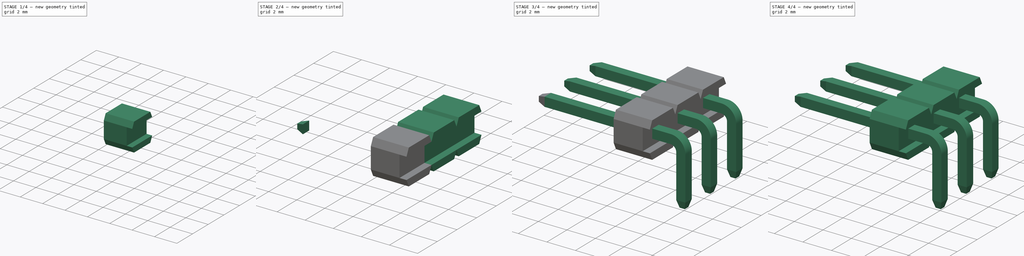
[diagram: build sequence overview — one tinted view per stage of 4, left to right]
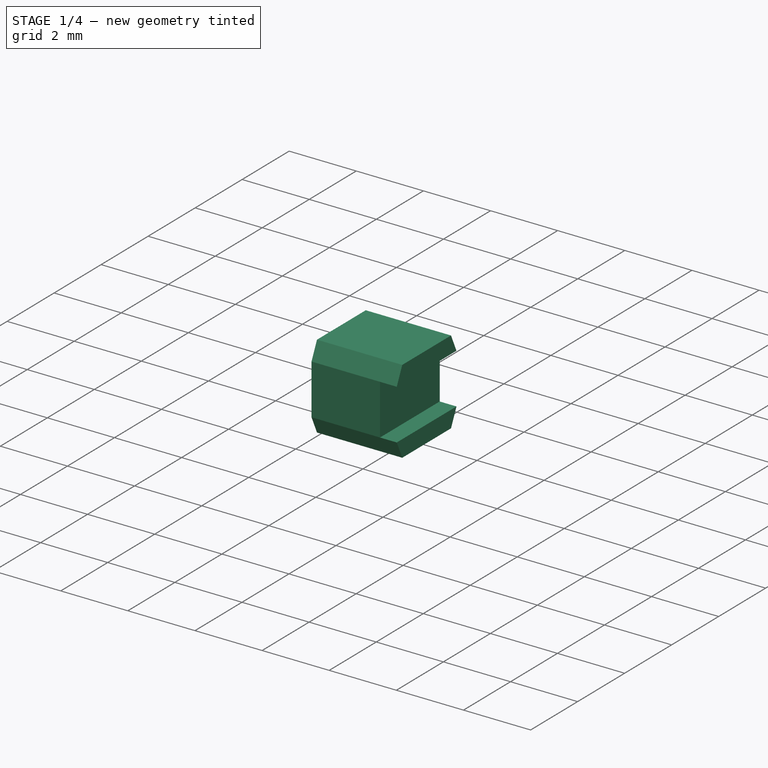
[diagram: stage 1 of 4 — iso view after this stage's code; geometry added in this stage tinted green]
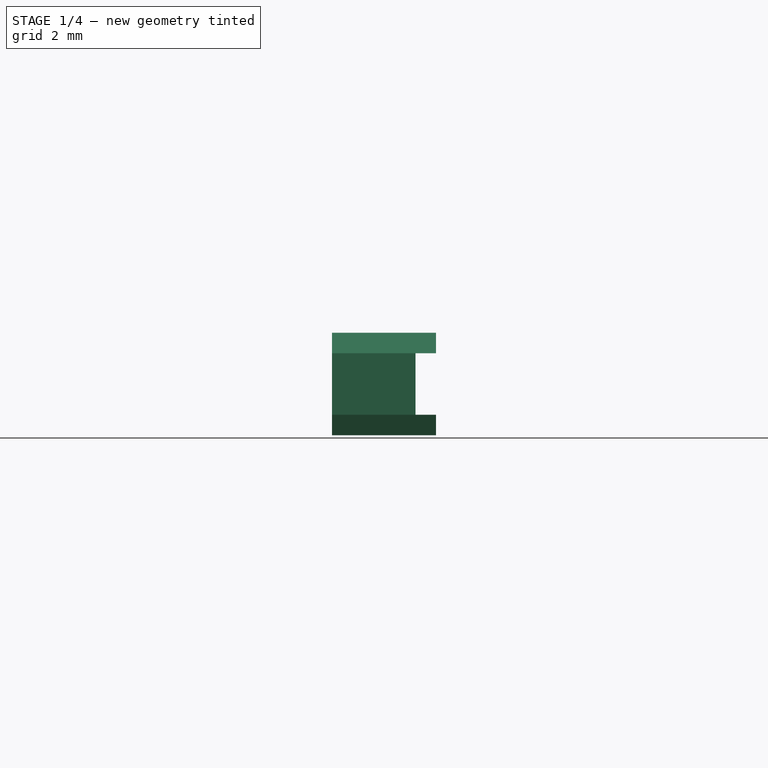
[diagram: stage 1 of 4 — front view after this stage's code; geometry added in this stage tinted green]
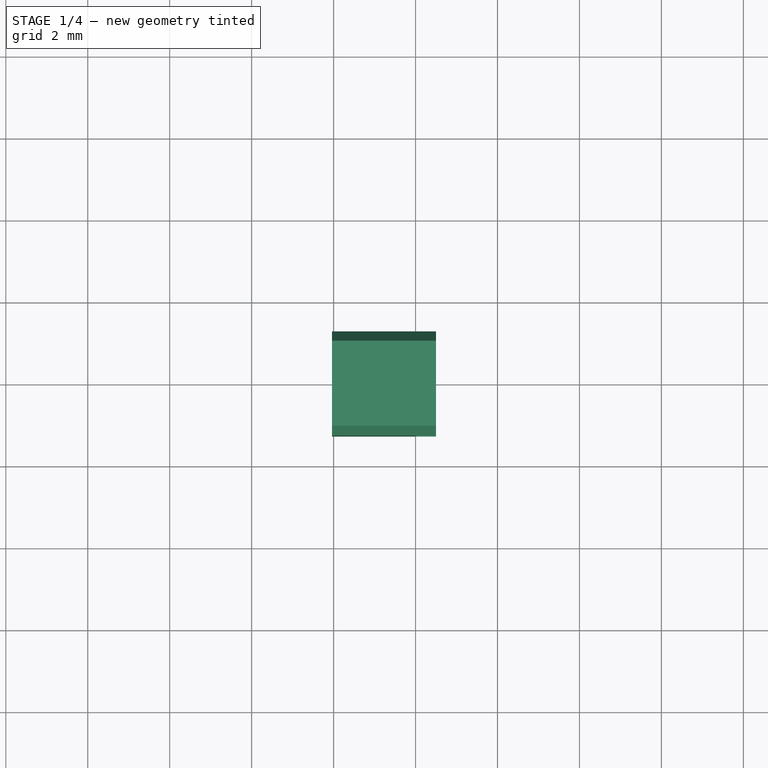
[diagram: stage 1 of 4 — top view after this stage's code; geometry added in this stage tinted green]
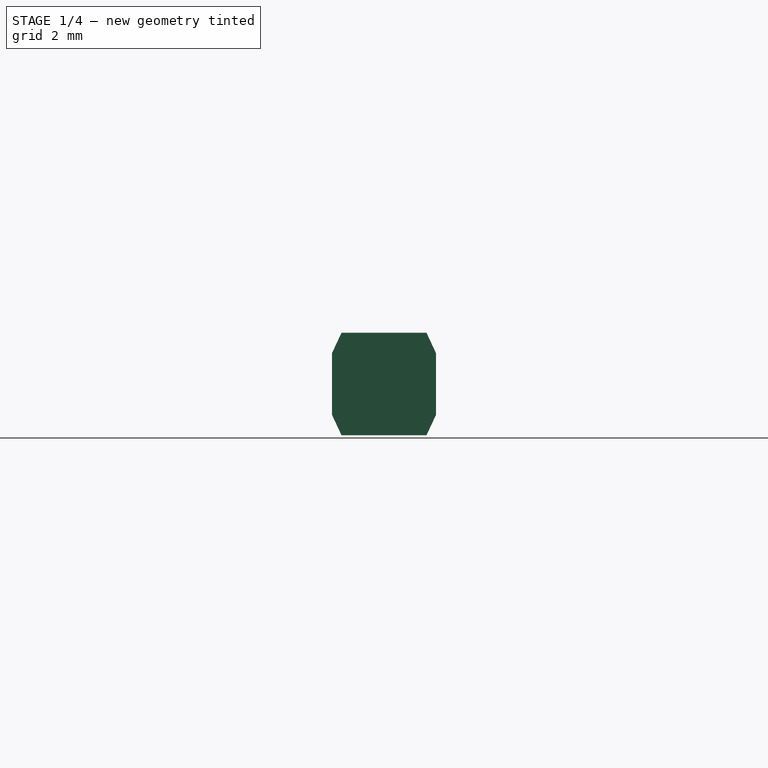
[diagram: stage 1 of 4 — right view after this stage's code; geometry added in this stage tinted green]
FCSTD DOCUMENT  (FreeCAD 0.16R6707 (Git))
Label: 1x3-male-pin-header-right-angle-type-II
License: All rights reserved
LicenseURL: http://en.wikipedia.org/wiki/All_rights_reserved
objects: Sketcher::SketchObject×5, Part::FeaturePython×5, PartDesign::Pad×2, Part::Loft×1, Part::MultiFuse×1, PartDesign::Pocket×1, App::DocumentObjectGroup×1
note: 18 computed .brp shape members not serialized (recipe doc carries the construction recipe); baked Part::Feature solids carry a one-line shape summary decoded from their .brp

FEATURE [Sketcher::SketchObject] Sketch003  label="Insulator-sketch-1"
  Placement = pos=(-4.04,-1e-12,-0.000281898) rot=(0.57735,0.57735,0.57735;2.0944rad)
  sketch-geometry (11):
    g0: LineSegment StartX=-1.0375 StartY=0 StartZ=0 EndX=1.0375 EndY=0 EndZ=0
    g1: LineSegment [constr] StartX=-1.0375 StartY=0 StartZ=0 EndX=-1.0375 EndY=2.5 EndZ=0
    g2: LineSegment [constr] StartX=-1.0375 StartY=1.25 StartZ=0 EndX=0 EndY=1.25 EndZ=0
    g3: LineSegment [constr] StartX=-1.27 StartY=0.5 StartZ=0 EndX=1.27 EndY=0.5 EndZ=0
    g4: LineSegment StartX=-1.0375 StartY=0 StartZ=0 EndX=-1.27 EndY=0.5 EndZ=0
    g5: LineSegment StartX=-1.27 StartY=0.5 StartZ=0 EndX=-1.27 EndY=2 EndZ=0
    g6: LineSegment StartX=-1.27 StartY=2 StartZ=0 EndX=-1.0375 EndY=2.5 EndZ=0
    g7: LineSegment StartX=-1.0375 StartY=2.5 StartZ=0 EndX=1.0375 EndY=2.5 EndZ=0
    g8: LineSegment StartX=1.0375 StartY=2.5 StartZ=0 EndX=1.27 EndY=2 EndZ=0
    g9: LineSegment StartX=1.27 StartY=2 StartZ=0 EndX=1.27 EndY=0.5 EndZ=0
    g10: LineSegment StartX=1.27 StartY=0.5 StartZ=0 EndX=1.0375 EndY=0 EndZ=0
  constraints (28):
    c: PointOnObject(g0,g-1)
    c: Symmetric(g0,g0,g-2)
    c: DistanceX(g0,g0) = 2.075
    c: Coincident(g1,g0)
    c: Vertical(g1)
    c: DistanceY(g1,g1) = 2.5
    c: PointOnObject(g2,g1)
    c: PointOnObject(g2,g-2)
    c: Symmetric(g1,g0,g2)
    c: Horizontal(g3)
    c: Symmetric(g3,g3,g-2)
    c: DistanceX(g3,g3) = 2.54
    c: Coincident(g0,g4)
    c: Coincident(g4,g3)
    c: Coincident(g4,g5)
    c: Coincident(g5,g6)
    c: Coincident(g6,g1)
    c: Symmetric(g3,g5,g2)
    c: DistanceY(g0,g3) = 0.5
    c: Coincident(g7,g1)
    c: Horizontal(g7)
    c: Coincident(g7,g8)
    c: Coincident(g8,g9)
    c: Coincident(g9,g3)
    c: Coincident(g9,g10)
    c: Coincident(g10,g0)
    c: Symmetric(g1,g7,g-2)
    c: Symmetric(g8,g5,g-2)
FEATURE [PartDesign::Pad] Pad001  label="Insulator-1"
  Length = 2.54
  Length2 = 100
  Placement = pos=(-4.04,-1e-12,-0.000281898) rot=(0.57735,0.57735,0.57735;2.0944rad)
  Sketch = -> Sketch003
  Type = 0
FEATURE [Sketcher::SketchObject] Sketch004  label="Insulator-2-sketch"
  ExternalGeometry = -> [Pad001]
  Placement = pos=(-4.04,-1.27,-0.000281898) rot=(0.57735,0.57735,-0.57735;2.0944rad)
  Support = -> Pad001 [Face7]
  sketch-geometry (4):
    g0: LineSegment StartX=-2 StartY=2.54 StartZ=0 EndX=-0.5 EndY=2.54 EndZ=0
    g1: LineSegment StartX=-0.5 StartY=2.54 StartZ=0 EndX=-0.5 EndY=2.04 EndZ=0
    g2: LineSegment StartX=-0.5 StartY=2.04 StartZ=0 EndX=-2 EndY=2.04 EndZ=0
    g3: LineSegment StartX=-2 StartY=2.04 StartZ=0 EndX=-2 EndY=2.54 EndZ=0
  constraints (11):
    c: Coincident(g0,g1)
    c: Coincident(g1,g2)
    c: Coincident(g2,g3)
    c: Coincident(g3,g0)
    c: Horizontal(g0)
    c: Horizontal(g2)
    c: Vertical(g1)
    c: Vertical(g3)
    c: Coincident(g0,g-3)
    c: Coincident(g0,g-3)
    c: DistanceY(g1,g1) = 0.5
FEATURE [PartDesign::Pocket] Pocket  label="Insulator-2"
  Length = 5
  Placement = pos=(-4.04,-1e-12,-0.000281898) rot=(0.57735,0.57735,0.57735;2.0944rad)
  Sketch = -> Sketch004
  Type = 1
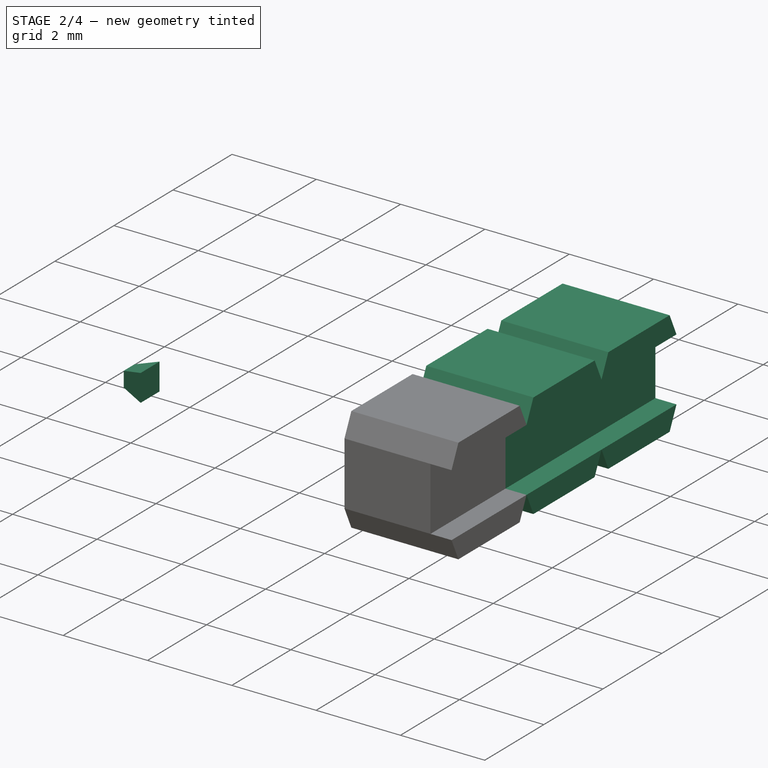
[diagram: stage 2 of 4 — iso view after this stage's code; geometry added in this stage tinted green]
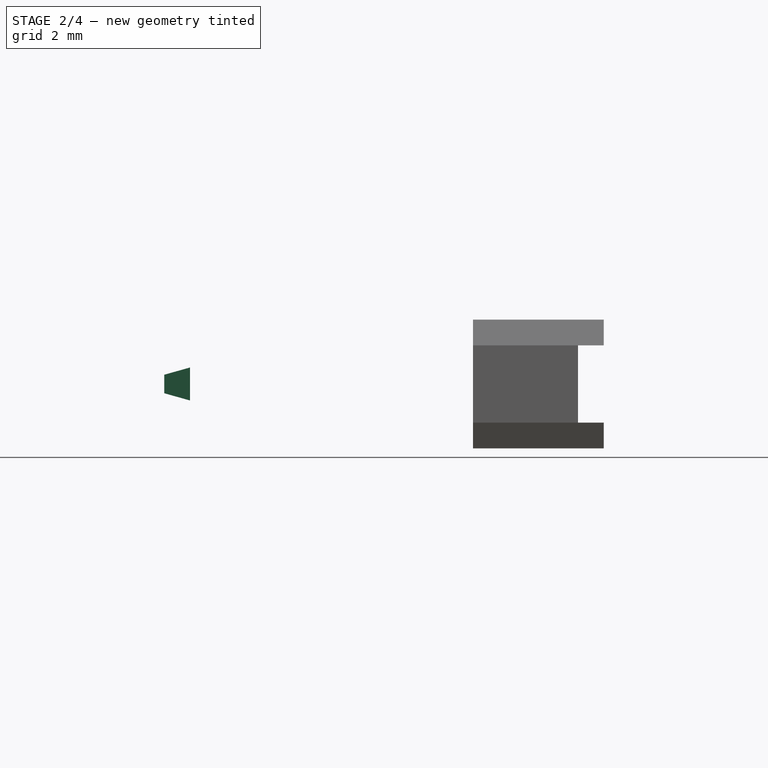
[diagram: stage 2 of 4 — front view after this stage's code; geometry added in this stage tinted green]
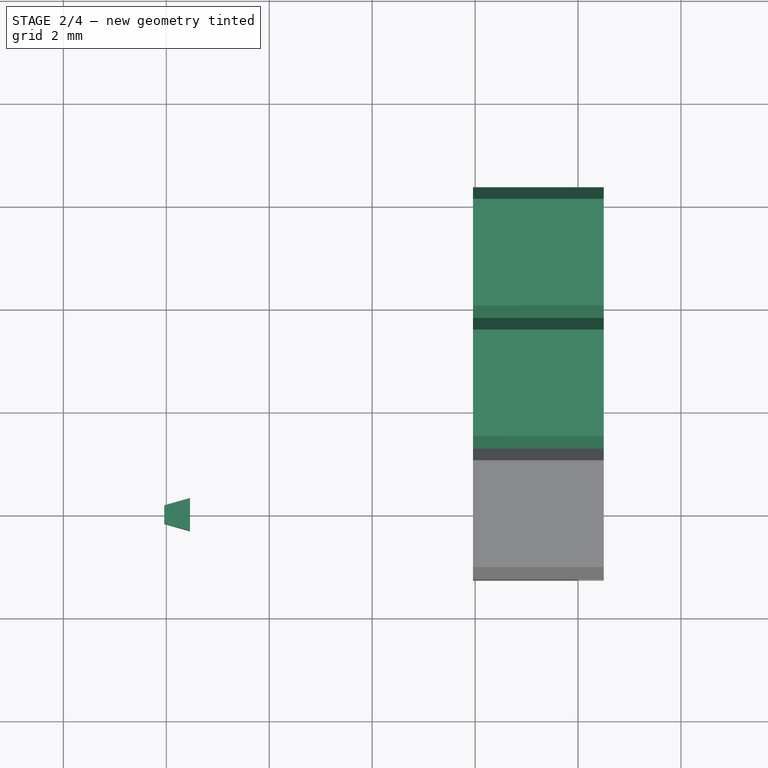
[diagram: stage 2 of 4 — top view after this stage's code; geometry added in this stage tinted green]
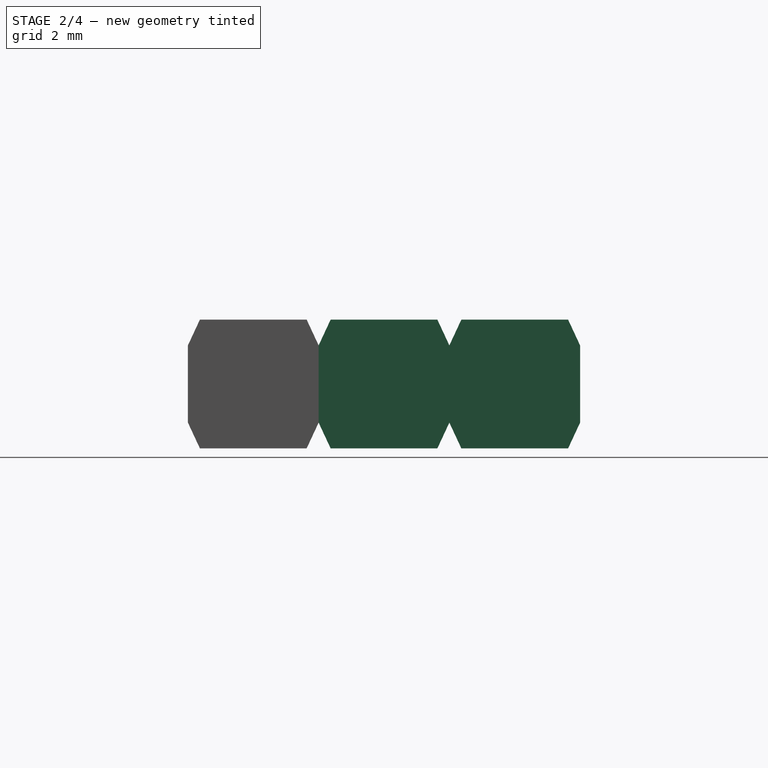
[diagram: stage 2 of 4 — right view after this stage's code; geometry added in this stage tinted green]
FEATURE [Sketcher::SketchObject] Sketch001  label="pin-end-base1-sketch"
  Placement = pos=(-9.54,0,0) rot=(0.707107,0,-0.707107;3.14159rad)
  sketch-geometry (4):
    g0: LineSegment StartX=-1.57 StartY=-0.32 StartZ=0 EndX=-0.93 EndY=-0.32 EndZ=0
    g1: LineSegment StartX=-0.93 StartY=-0.32 StartZ=0 EndX=-0.93 EndY=0.32 EndZ=0
    g2: LineSegment StartX=-0.93 StartY=0.32 StartZ=0 EndX=-1.57 EndY=0.32 EndZ=0
    g3: LineSegment StartX=-1.57 StartY=0.32 StartZ=0 EndX=-1.57 EndY=-0.32 EndZ=0
  constraints (8):
    c: Coincident(g0,g1)
    c: Coincident(g1,g2)
    c: Coincident(g2,g3)
    c: Coincident(g3,g0)
    c: Horizontal(g0)
    c: Horizontal(g2)
    c: Vertical(g1)
    c: Vertical(g3)
FEATURE [Sketcher::SketchObject] Sketch002  label="pin-end-base2-sketch"
  Placement = pos=(-10.04,0,0) rot=(0.707107,0,-0.707107;3.14159rad)
  sketch-geometry (6):
    g0: LineSegment StartX=-1.43 StartY=0.18 StartZ=0 EndX=-1.07 EndY=0.18 EndZ=0
    g1: LineSegment StartX=-1.07 StartY=0.18 StartZ=0 EndX=-1.07 EndY=-0.18 EndZ=0
    g2: LineSegment StartX=-1.07 StartY=-0.18 StartZ=0 EndX=-1.43 EndY=-0.18 EndZ=0
    g3: LineSegment StartX=-1.43 StartY=-0.18 StartZ=0 EndX=-1.43 EndY=0.18 EndZ=0
    g4: LineSegment [constr] StartX=-1.25 StartY=0.32 StartZ=0 EndX=-1.25 EndY=0.18 EndZ=0
    g5: LineSegment [constr] StartX=-1.57 StartY=0 StartZ=0 EndX=-1.43 EndY=0 EndZ=0
  constraints (15):
    c: Coincident(g0,g1)
    c: Coincident(g1,g2)
    c: Coincident(g2,g3)
    c: Coincident(g3,g0)
    c: Horizontal(g0)
    c: Horizontal(g2)
    c: Vertical(g1)
    c: Vertical(g3)
    c: PointOnObject(g4,g0)
    c: Symmetric(g0,g0,g4)
    c: Equal(g0,g3)
    c: PointOnObject(g5,g3)
    c: Horizontal(g5)
    c: Symmetric(g0,g2,g5)
    c: DistanceY(g1,g1) = 0.36
FEATURE [Part::Loft] Loft  label="Pin-end"
  Closed = false
  Placement = pos=(1.25,0,7.04) rot=(0,-1,0;1.5708rad)
  Ruled = false
  Sections = -> [Sketch001,Sketch002]
  Solid = true
FEATURE [Part::FeaturePython] Clone  label="Pin-end2"  # Draft clone (typed FeaturePython)
  Objects = -> [Loft]
  Scale = (1,1,1)
FEATURE [Part::FeaturePython] Array001  label="Insulator-array-3-src"  # Draft array (typed FeaturePython)
  Angle = 360
  ArrayType = 0
  Axis = (0,0,1)
  Base = -> Pocket
  Center = (0,0,0)
  Fuse = false
  IntervalAxis = (0,0,0)
  IntervalX = (1,0,0)
  IntervalY = (0,2.54,0)
  IntervalZ = (0,0,0)
  NumberPolar = 1
  NumberX = 1
  NumberY = 3
  NumberZ = 1
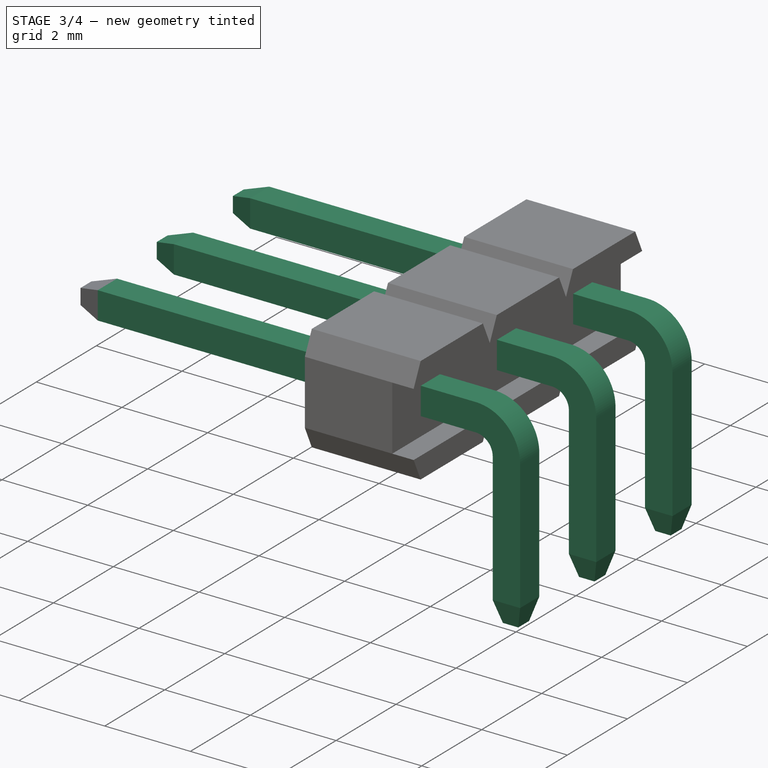
[diagram: stage 3 of 4 — iso view after this stage's code; geometry added in this stage tinted green]
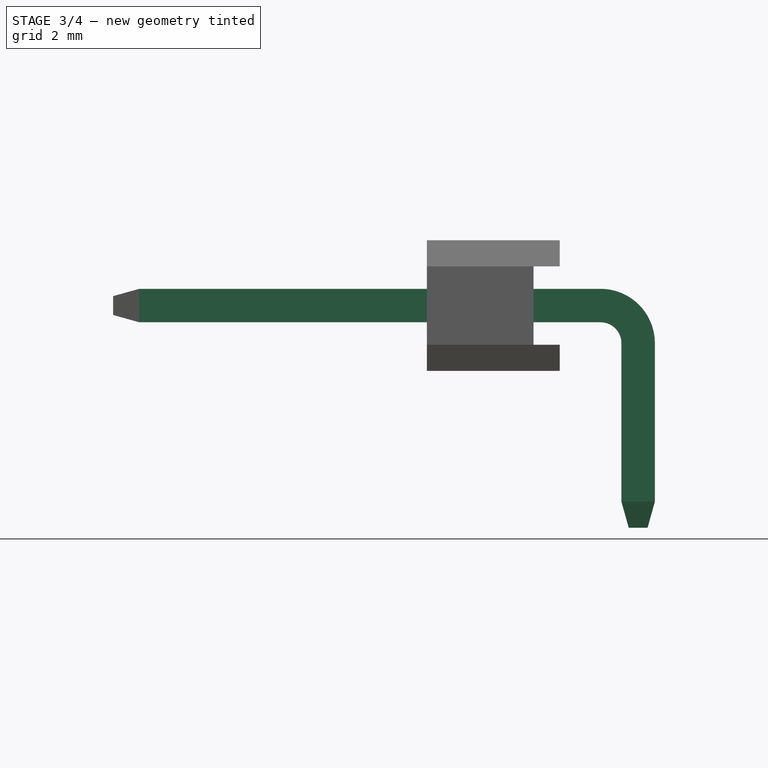
[diagram: stage 3 of 4 — front view after this stage's code; geometry added in this stage tinted green]
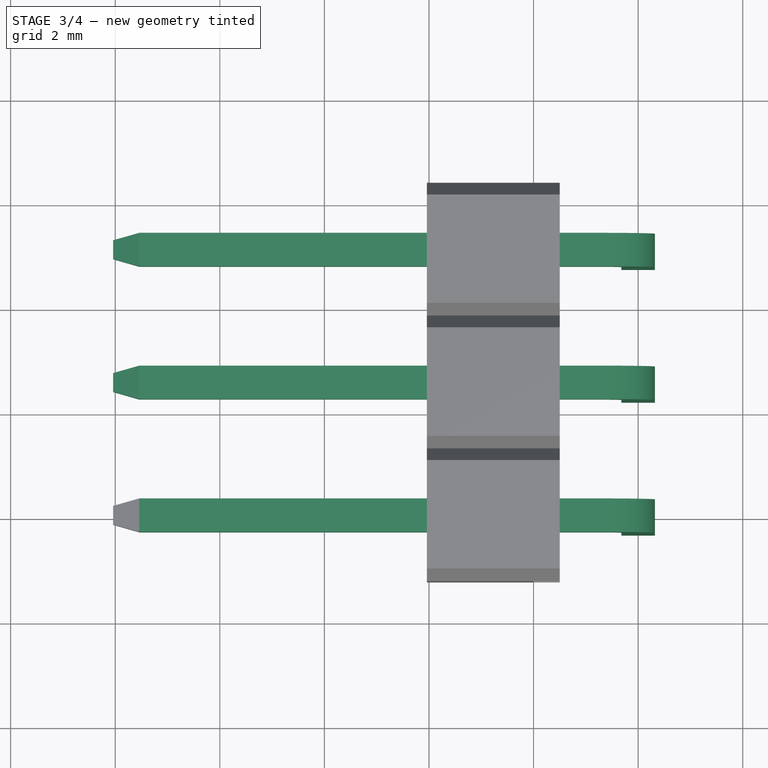
[diagram: stage 3 of 4 — top view after this stage's code; geometry added in this stage tinted green]
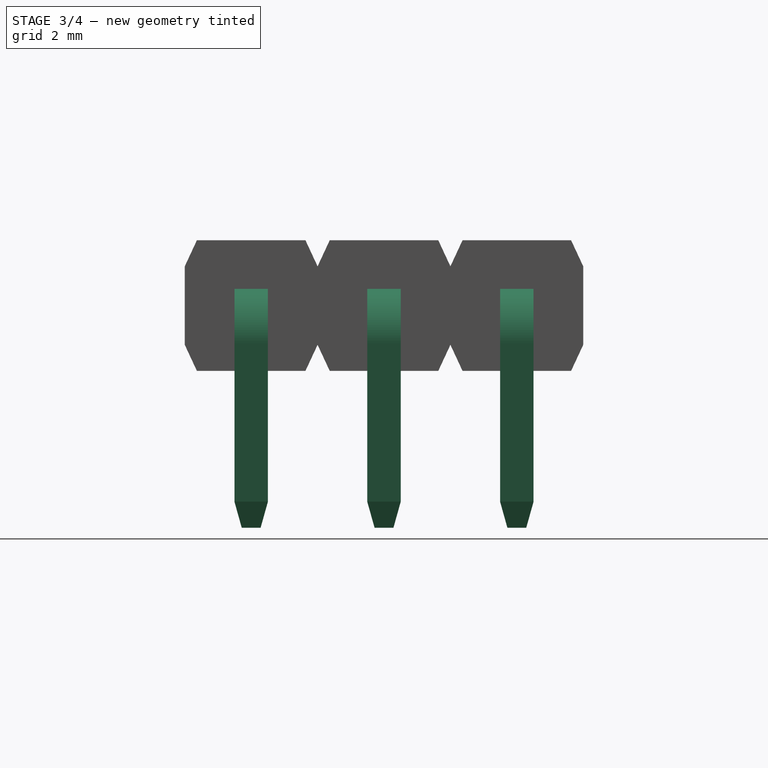
[diagram: stage 3 of 4 — right view after this stage's code; geometry added in this stage tinted green]
FEATURE [Sketcher::SketchObject] Sketch  label="pin-body-sketch"
  Placement = pos=(0,0,0) rot=(-1,0,0;4.71239rad)
  sketch-geometry (10):
    g0: LineSegment StartX=0.32 StartY=0.53 StartZ=0 EndX=0.32 EndY=-2.5 EndZ=0
    g1: LineSegment StartX=0.32 StartY=-2.5 StartZ=0 EndX=-0.32 EndY=-2.5 EndZ=0
    g2: LineSegment StartX=-0.32 StartY=-2.5 StartZ=0 EndX=-0.32 EndY=0.53 EndZ=0
    g3: LineSegment StartX=-9.54 StartY=1.57 StartZ=0 EndX=-0.72 EndY=1.57 EndZ=0
    g4: LineSegment StartX=-0.72 StartY=0.93 StartZ=0 EndX=-9.54 EndY=0.93 EndZ=0
    g5: LineSegment StartX=-9.54 StartY=0.93 StartZ=0 EndX=-9.54 EndY=1.57 EndZ=0
    g6: ArcOfCircle CenterX=-0.72 CenterY=0.53 CenterZ=0 NormalX=0 NormalY=0 NormalZ=1 Radius=0.4 StartAngle=0 EndAngle=1.5708
    g7: LineSegment [constr] StartX=-0.72 StartY=0.53 StartZ=0 EndX=-0.32 EndY=0.53 EndZ=0
    g8: LineSegment [constr] StartX=-0.72 StartY=0.53 StartZ=0 EndX=-0.72 EndY=0.93 EndZ=0
    g9: ArcOfCircle CenterX=-0.72 CenterY=0.53 CenterZ=0 NormalX=0 NormalY=0 NormalZ=1 Radius=1.04 StartAngle=0 EndAngle=1.5708
  constraints (30):
    c: Coincident(g0,g1)
    c: Coincident(g1,g2)
    c: Horizontal(g1)
    c: Vertical(g0)
    c: Vertical(g2)
    c: Coincident(g4,g5)
    c: Coincident(g5,g3)
    c: Horizontal(g3)
    c: Horizontal(g4)
    c: Vertical(g5)
    c: Coincident(g6,g4)
    c: Coincident(g6,g2)
    c: Coincident(g7,g6)
    c: Coincident(g7,g2)
    c: Horizontal(g7)
    c: Coincident(g8,g6)
    c: Coincident(g8,g4)
    c: Vertical(g8)
    c: Coincident(g9,g6)
    c: Coincident(g9,g0)
    c: Coincident(g3,g9)
    c: PointOnObject(g3,g8)
    c: PointOnObject(g0,g7)
    c: DistanceX(g1,g1) = 0.64
    c: Equal(g1,g5)
    c: Symmetric(g1,g0,g-2)
    c: DistanceY(g0,g-1) = 2.5
    c: DistanceY(g-1,g4) = 0.93
    c: DistanceX(g3,g3) = 8.82
    c: DistanceX(g3,g-1) = 0.72
FEATURE [PartDesign::Pad] Pad  label="pin-body"
  Length = 0.64
  Length2 = 100
  Midplane = true
  Placement = pos=(0,0,0) rot=(-1,0,0;4.71239rad)
  Sketch = -> Sketch
  Type = 0
FEATURE [Part::MultiFuse] Fusion  label="pin-src"
  Shapes = -> [Pad,Loft,Clone]
FEATURE [Part::FeaturePython] Array  label="pin-array-3-src"  # Draft array (typed FeaturePython)
  Angle = 360
  ArrayType = 0
  Axis = (0,0,1)
  Base = -> Fusion
  Center = (0,0,0)
  Fuse = false
  IntervalAxis = (0,0,0)
  IntervalX = (1,0,0)
  IntervalY = (0,2.54,0)
  IntervalZ = (0,0,0)
  NumberPolar = 1
  NumberX = 1
  NumberY = 3
  NumberZ = 1
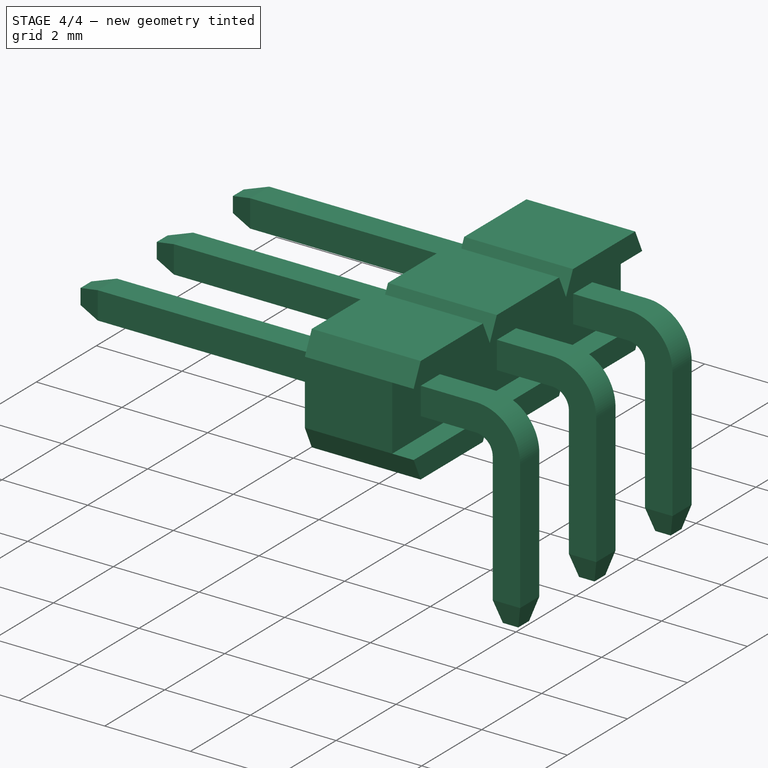
[diagram: stage 4 of 4 — iso view after this stage's code; geometry added in this stage tinted green]
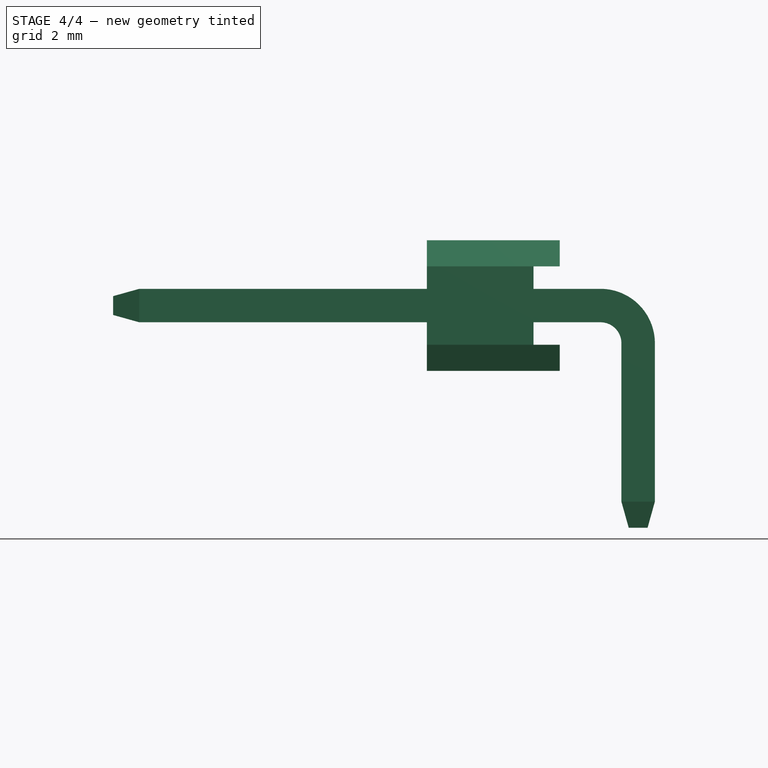
[diagram: stage 4 of 4 — front view after this stage's code; geometry added in this stage tinted green]
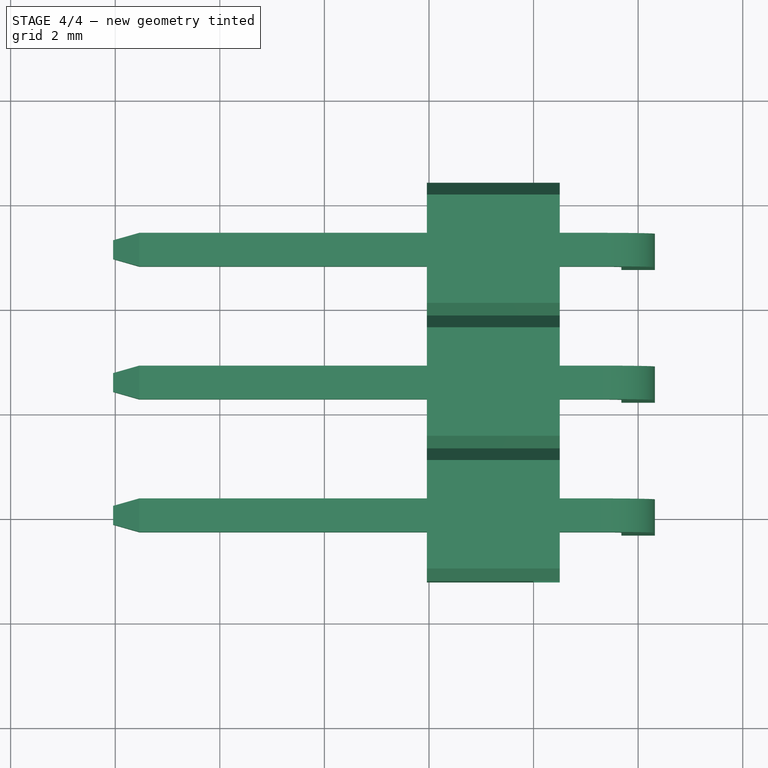
[diagram: stage 4 of 4 — top view after this stage's code; geometry added in this stage tinted green]
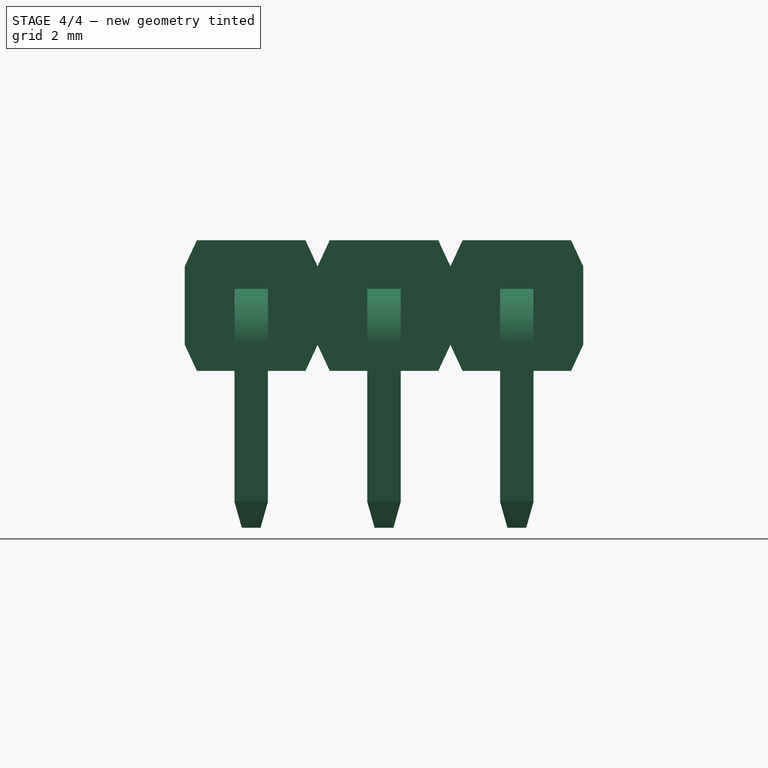
[diagram: stage 4 of 4 — right view after this stage's code; geometry added in this stage tinted green]
FEATURE [Part::FeaturePython] Clone001  label="pins"  # Draft clone (typed FeaturePython)
  Objects = -> [Array]
  Scale = (1,1,1)
FEATURE [Part::FeaturePython] Clone002  label="Insulators"  # Draft clone (typed FeaturePython)
  Objects = -> [Array001]
  Scale = (1,1,1)
FEATURE [App::DocumentObjectGroup] Group  label="src"
  Group = -> [Array,Pad001,Array001]
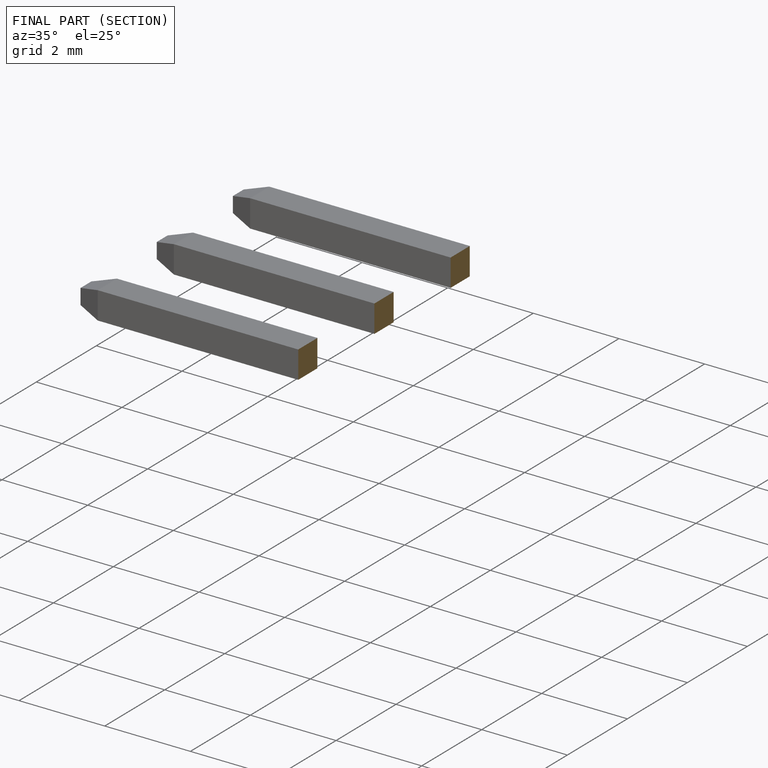
[diagram: finished part — half-section view (interior)]
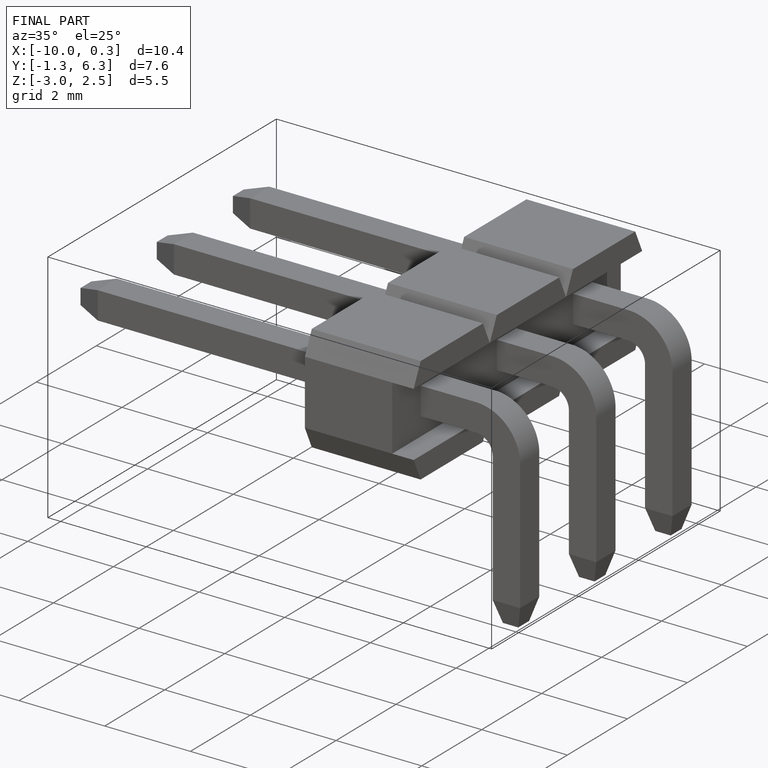
[diagram: finished part — iso view with bounding-box wireframe]
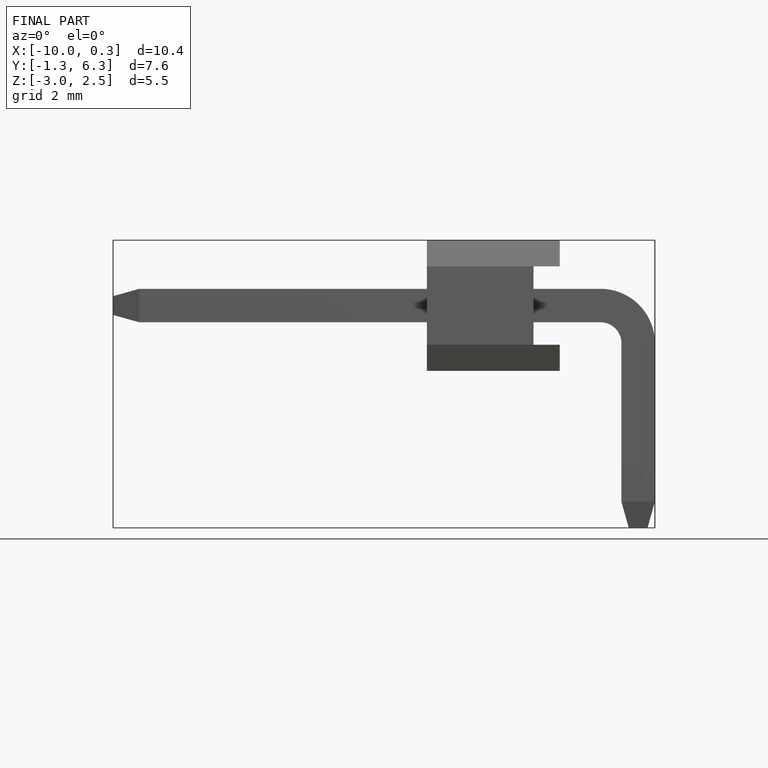
[diagram: finished part — front view with bounding-box wireframe]
